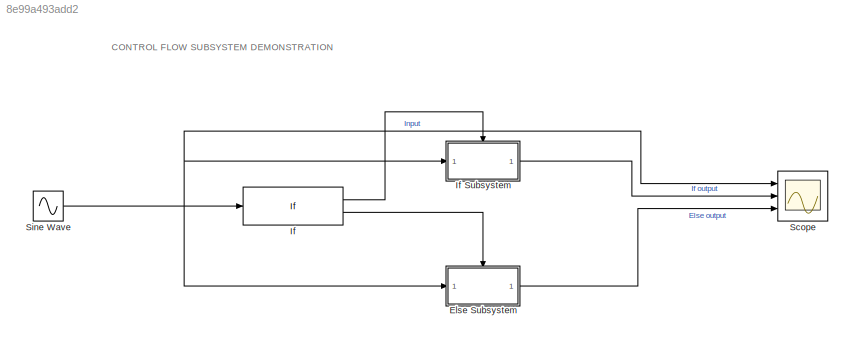
MODEL slx_8e99a493add2
KIND model
CONFIG AbsTol = auto
CONFIG EnableMultiTasking = off
CONFIG FixedStep = auto
CONFIG MaxStep = auto
CONFIG MinStep = auto
CONFIG RelTol = 1e-3
CONFIG SampleTimeConstraint = Unconstrained
CONFIG Solver = VariableStepAuto
CONFIG SolverName = VariableStepAuto
CONFIG StartTime = 0.0
CONFIG StopTime = 10.0
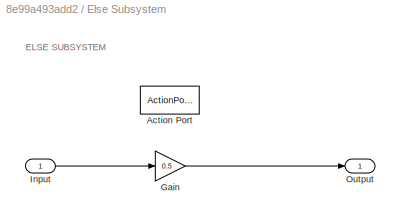
BLOCK [SubSystem] Else Subsystem
  Ports = [1, 1, 0, 0, 0, 0, 0, 1]
  RequestExecContextInheritance = off
  TreatAsAtomicUnit = on
BLOCK [ActionPort] Else Subsystem/Action Port
  ActionPortLabel = else
BLOCK [Gain] Else Subsystem/Gain
  Gain = 0.5
  OutDataTypeStr = Inherit: Inherit via internal rule
  ParamDataTypeStr = Inherit: Inherit via internal rule
  SaturateOnIntegerOverflow = off
BLOCK [Inport] Else Subsystem/Input 
  IconDisplay = Port number
BLOCK [Outport] Else Subsystem/Output
  IconDisplay = Port number
BLOCK [If] If 
  Ports = [1, 2]
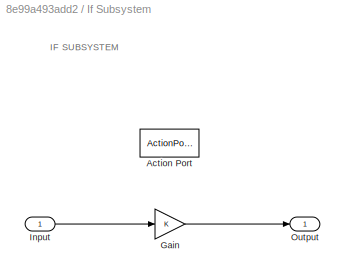
BLOCK [SubSystem] If Subsystem 
  Ports = [1, 1, 0, 0, 0, 0, 0, 1]
  RequestExecContextInheritance = off
  TreatAsAtomicUnit = on
BLOCK [ActionPort] If Subsystem /Action Port
  ActionPortLabel = if(u1 > 0)
BLOCK [Gain] If Subsystem /Gain
  OutDataTypeStr = Inherit: Inherit via internal rule
  ParamDataTypeStr = Inherit: Inherit via internal rule
  SaturateOnIntegerOverflow = off
BLOCK [Inport] If Subsystem /Input 
  IconDisplay = Port number
BLOCK [Outport] If Subsystem /Output
  IconDisplay = Port number
BLOCK [Scope] Scope
  Floating = off
  NumInputPorts = 3
  Ports = [3]
  ScopeSpecificationString = Simulink.scopes.TimeScopeBlockCfg('CurrentConfiguration', extmgr.ConfigurationSet(extmgr.Configuration('Core','General UI',true),extmgr.Configuration('Core','Source UI',true),extmgr.Configuration('Sources','WiredSimulink',true),extmgr.Configuration('Visuals','Time Domain',true,'SerializedDisplays',{struct('MinYLimReal','-1.25','MaxYLimReal','1.25','YLabelReal','','MinYLimMag','0.00000','MaxYLimMag...<+2666ch>
BLOCK [Sin] Sine Wave 
  Frequency = 5
  Ports = [0, 1]
  SampleTime = 1/2000
  Samples = 2000
  SineType = Sample based
ANNOTATION (root): CONTROL FLOW SUBSYSTEM DEMONSTRATION
ANNOTATION Else Subsystem: ELSE SUBSYSTEM
ANNOTATION If Subsystem : IF SUBSYSTEM
LINE Else Subsystem/Gain:1 -> Else Subsystem/Output:1
LINE Else Subsystem/Input :1 -> Else Subsystem/Gain:1
LINE Else Subsystem:1 -> Scope:3
LINE If :1 -> If Subsystem :ifaction
LINE If :2 -> Else Subsystem:ifaction
LINE If Subsystem /Gain:1 -> If Subsystem /Output:1
LINE If Subsystem /Input :1 -> If Subsystem /Gain:1
LINE If Subsystem :1 -> Scope:2
NET Sine Wave :1 -> Else Subsystem:1, If :1, If Subsystem :1, Scope:1
note: NET lines group one-source signal fan-out (src -> all destinations, sorted); 1:1 wires keep LINE
